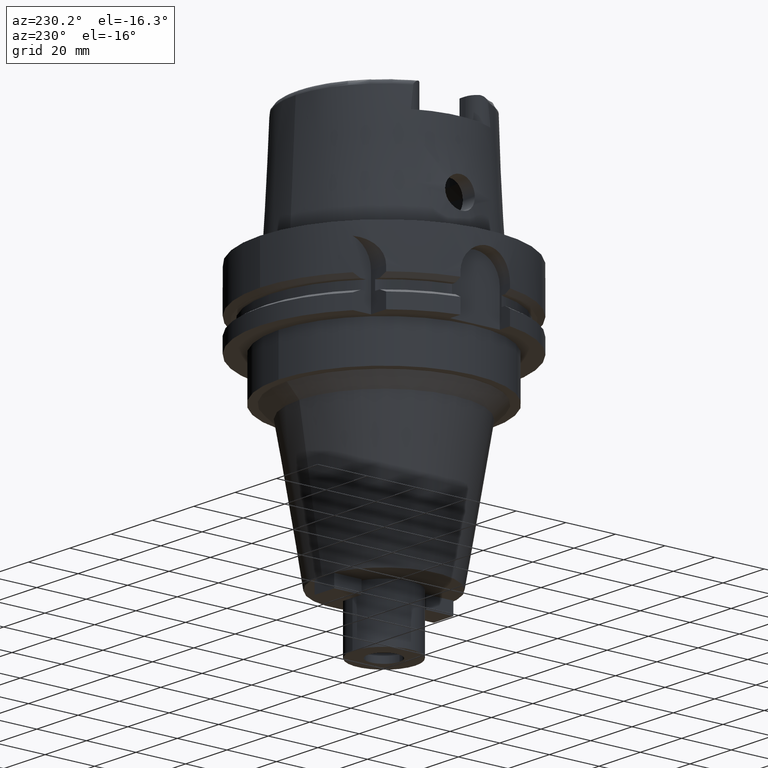
[diagram: clean part render]
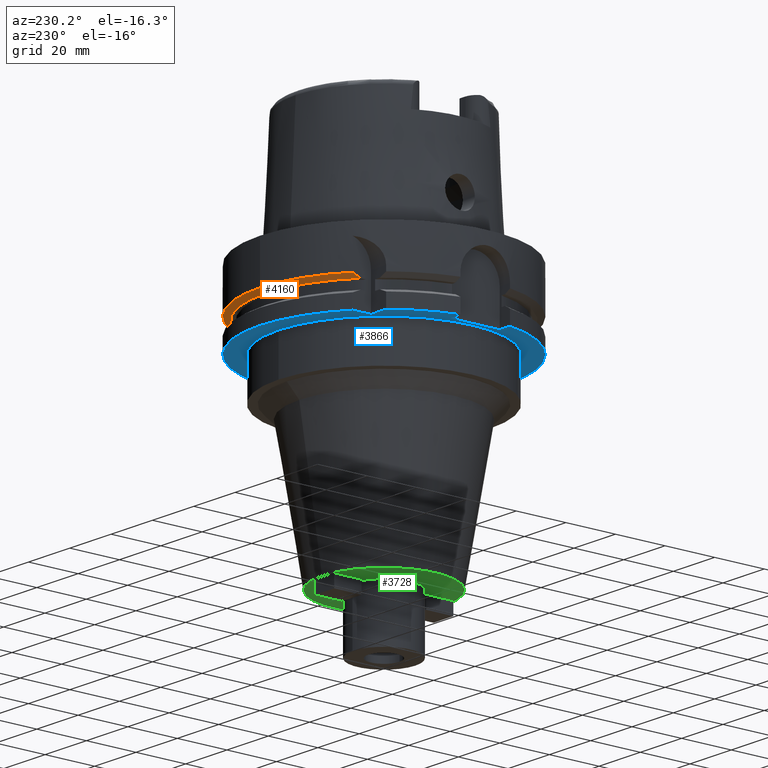
[diagram: same view with three faces highlighted in distinct colors, each labeled with its STEP entity id]
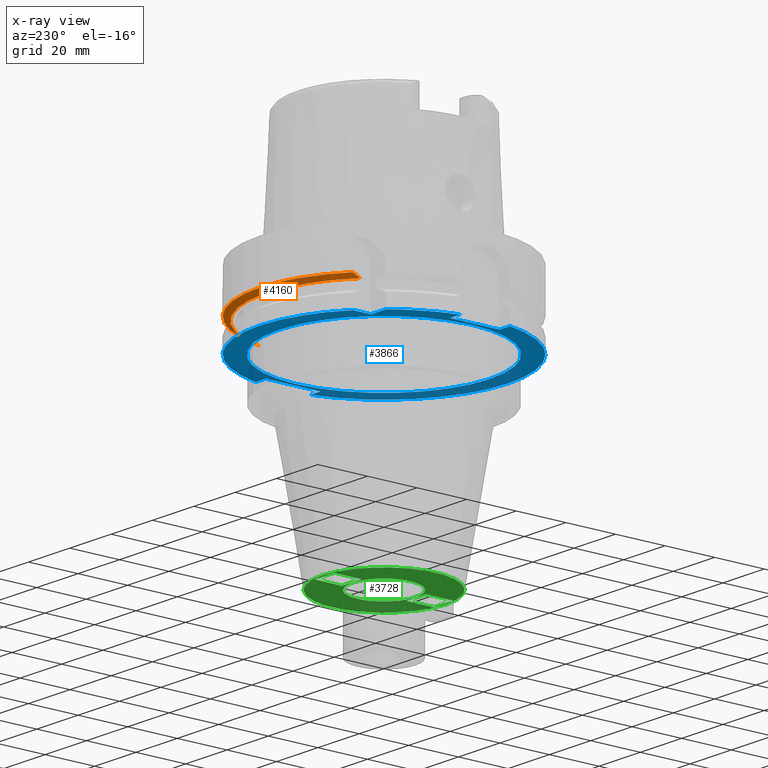
[diagram: x-ray of the same camera — body ghosted, the three highlighted faces saturated]
A machine part, auxiliary view with three faces highlighted in distinct colors.
The next image is the same camera in x-ray (body ghosted, the three faces saturated) — at least one of them is partly hidden behind the body in this view.
Their STEP definitions:

[orange] entity #4160 — the highlighted conical surface has half-angle 60 deg.
#1458=CARTESIAN_POINT('',(-3.150000097280E1,3.571639618473E1,-1.8125E1));
#1459=CARTESIAN_POINT('',(-3.150000097280E1,3.606333863821E1,
-1.797477179943E1));
#1460=CARTESIAN_POINT('',(-3.150000002064E1,3.675646915241E1,
-1.767266204693E1));
#1461=CARTESIAN_POINT('',(-3.149999846856E1,3.779429574908E1,
-1.721518165954E1));
#1462=CARTESIAN_POINT('',(-3.150000355959E1,3.848477495946E1,
-1.690706900025E1));
#1463=CARTESIAN_POINT('',(-3.150000355959E1,3.882975374305E1,
-1.675239179145E1));
#1727=CARTESIAN_POINT('',(4.633477721644E1,1.1E1,-1.8125E1));
#1728=CARTESIAN_POINT('',(4.660605711265E1,1.1E1,-1.797261191789E1));
#1729=CARTESIAN_POINT('',(4.714851446811E1,1.1E1,-1.766774350267E1));
#1730=CARTESIAN_POINT('',(4.796191616323E1,1.1E1,-1.721020456770E1));
#1731=CARTESIAN_POINT('',(4.850399904748E1,1.1E1,-1.690503024962E1));
#1732=CARTESIAN_POINT('',(4.877499359303E1,1.1E1,-1.675240473581E1));
#1737=CARTESIAN_POINT('',(0.E0,0.E0,-1.675240473581E1));
#1738=DIRECTION('',(0.E0,0.E0,1.E0));
#1739=DIRECTION('',(9.754998718606E-1,2.2E-1,0.E0));
#1740=AXIS2_PLACEMENT_3D('',#1737,#1738,#1739);
#1745=CARTESIAN_POINT('',(0.E0,0.E0,-1.675240473581E1));
#1746=DIRECTION('',(0.E0,0.E0,1.E0));
#1747=DIRECTION('',(0.E0,1.E0,0.E0));
#1748=AXIS2_PLACEMENT_3D('',#1745,#1746,#1747);
#1776=CARTESIAN_POINT('',(0.E0,0.E0,-1.8125E1));
#1777=DIRECTION('',(0.E0,0.E0,1.E0));
#1778=DIRECTION('',(9.729578356533E-1,2.309827916554E-1,0.E0));
#1779=AXIS2_PLACEMENT_3D('',#1776,#1777,#1778);
#1784=CARTESIAN_POINT('',(0.E0,0.E0,-1.8125E1));
#1785=DIRECTION('',(0.E0,0.E0,1.E0));
#1786=DIRECTION('',(0.E0,1.E0,0.E0));
#1787=AXIS2_PLACEMENT_3D('',#1784,#1785,#1786);
#2682=CARTESIAN_POINT('',(-3.150000097280E1,3.571639618473E1,-1.8125E1));
#2683=VERTEX_POINT('',#2682);
#2684=VERTEX_POINT('',#1463);
#2762=CARTESIAN_POINT('',(4.633477721644E1,1.1E1,-1.8125E1));
#2763=VERTEX_POINT('',#2762);
#2764=CARTESIAN_POINT('',(1.065814103640E-14,4.762259526419E1,-1.8125E1));
#2765=VERTEX_POINT('',#2764);
#2772=VERTEX_POINT('',#1732);
#2773=CARTESIAN_POINT('',(0.E0,5.E1,-1.675240473581E1));
#2774=VERTEX_POINT('',#2773);
#4144=CARTESIAN_POINT('',(0.E0,0.E0,-1.743870236790E1));
#4145=DIRECTION('',(0.E0,0.E0,1.E0));
#4146=DIRECTION('',(0.E0,1.E0,0.E0));
#4147=AXIS2_PLACEMENT_3D('',#4144,#4145,#4146);
#4148=CONICAL_SURFACE('',#4147,4.881129763209E1,6.E1);
#4149=ORIENTED_EDGE('',*,*,#3883,.F.);
#4151=ORIENTED_EDGE('',*,*,#4150,.F.);
#4153=ORIENTED_EDGE('',*,*,#4152,.F.);
#4154=ORIENTED_EDGE('',*,*,#3923,.T.);
#4156=ORIENTED_EDGE('',*,*,#4155,.T.);
#4157=ORIENTED_EDGE('',*,*,#4123,.T.);
#4158=EDGE_LOOP('',(#4149,#4151,#4153,#4154,#4156,#4157));
#4159=FACE_OUTER_BOUND('',#4158,.F.);
#1464=B_SPLINE_CURVE_WITH_KNOTS('',3,(#1458,#1459,#1460,#1461,#1462,#1463),
.UNSPECIFIED.,.F.,.F.,(4,1,1,4),(0.E0,3.333333333333E-1,6.666666666667E-1,1.E0),
.UNSPECIFIED.);
#1733=B_SPLINE_CURVE_WITH_KNOTS('',3,(#1727,#1728,#1729,#1730,#1731,#1732),
.UNSPECIFIED.,.F.,.F.,(4,1,1,4),(0.E0,3.333333333333E-1,6.666666666667E-1,1.E0),
.UNSPECIFIED.);
#1741=CIRCLE('',#1740,5.E1);
#1749=CIRCLE('',#1748,5.E1);
#1780=CIRCLE('',#1779,4.762259526419E1);
#1788=CIRCLE('',#1787,4.762259526419E1);
#3883=EDGE_CURVE('',#2683,#2684,#1464,.T.);
#3923=EDGE_CURVE('',#2763,#2772,#1733,.T.);
#4123=EDGE_CURVE('',#2774,#2684,#1749,.T.);
#4150=EDGE_CURVE('',#2765,#2683,#1788,.T.);
#4152=EDGE_CURVE('',#2763,#2765,#1780,.T.);
#4155=EDGE_CURVE('',#2772,#2774,#1741,.T.);
#4160=ADVANCED_FACE('',(#4159),#4148,.T.);

[blue] entity #3866 — the highlighted planar face has unit normal (0, 0, 1).
#1367=DIRECTION('',(-1.E0,-4.798503851106E-14,0.E0));
#1368=VECTOR('',#1367,7.329756630709E0);
#1369=CARTESIAN_POINT('',(-3.15E1,3.15E1,-2.9E1));
#1370=LINE('',#1369,#1368);
#1374=CARTESIAN_POINT('',(0.E0,0.E0,-2.9E1));
#1375=DIRECTION('',(0.E0,0.E0,1.E0));
#1376=DIRECTION('',(-7.765951326142E-1,6.3E-1,0.E0));
#1377=AXIS2_PLACEMENT_3D('',#1374,#1375,#1376);
#1382=DIRECTION('',(-1.E0,-4.627973610177E-14,0.E0));
#1383=VECTOR('',#1382,4.989794855662E0);
#1384=CARTESIAN_POINT('',(-4.4E1,-1.E1,-2.9E1));
#1385=LINE('',#1384,#1383);
#1389=CARTESIAN_POINT('',(0.E0,0.E0,-2.9E1));
#1390=DIRECTION('',(0.E0,0.E0,1.E0));
#1391=DIRECTION('',(-9.797958971133E-1,-2.E-1,0.E0));
#1392=AXIS2_PLACEMENT_3D('',#1389,#1390,#1391);
#1397=CARTESIAN_POINT('',(0.E0,0.E0,-2.9E1));
#1398=DIRECTION('',(0.E0,0.E0,1.E0));
#1399=DIRECTION('',(0.E0,-1.E0,0.E0));
#1400=AXIS2_PLACEMENT_3D('',#1397,#1398,#1399);
#1405=DIRECTION('',(1.E0,-1.785659532940E-14,0.E0));
#1406=VECTOR('',#1405,4.774993593029E0);
#1407=CARTESIAN_POINT('',(4.4E1,1.1E1,-2.9E1));
#1408=LINE('',#1407,#1406);
#1412=CARTESIAN_POINT('',(0.E0,0.E0,-2.9E1));
#1413=DIRECTION('',(0.E0,0.E0,1.E0));
#1414=DIRECTION('',(9.754998718606E-1,2.2E-1,0.E0));
#1415=AXIS2_PLACEMENT_3D('',#1412,#1413,#1414);
#1420=CARTESIAN_POINT('',(0.E0,0.E0,-2.9E1));
#1421=DIRECTION('',(0.E0,0.E0,1.E0));
#1422=DIRECTION('',(0.E0,1.E0,0.E0));
#1423=AXIS2_PLACEMENT_3D('',#1420,#1421,#1422);
#1428=CARTESIAN_POINT('',(0.E0,0.E0,-2.9E1));
#1429=DIRECTION('',(0.E0,0.E0,-1.E0));
#1430=DIRECTION('',(0.E0,-1.E0,0.E0));
#1431=AXIS2_PLACEMENT_3D('',#1428,#1429,#1430);
#1436=CARTESIAN_POINT('',(0.E0,0.E0,-2.9E1));
#1437=DIRECTION('',(0.E0,0.E0,-1.E0));
#1438=DIRECTION('',(0.E0,1.E0,0.E0));
#1439=AXIS2_PLACEMENT_3D('',#1436,#1437,#1438);
#1444=DIRECTION('',(4.798503851106E-14,1.E0,0.E0));
#1445=VECTOR('',#1444,7.329756630709E0);
#1446=CARTESIAN_POINT('',(-3.15E1,3.15E1,-2.9E1));
#1447=LINE('',#1446,#1445);
#1497=DIRECTION('',(0.E0,-1.E0,0.E0));
#1498=VECTOR('',#1497,2.2E1);
#1499=CARTESIAN_POINT('',(4.4E1,1.1E1,-2.9E1));
#1500=LINE('',#1499,#1498);
#1541=DIRECTION('',(1.E0,1.711257052401E-14,0.E0));
#1542=VECTOR('',#1541,4.774993593029E0);
#1543=CARTESIAN_POINT('',(4.4E1,-1.1E1,-2.9E1));
#1544=LINE('',#1543,#1542);
#1583=DIRECTION('',(0.E0,1.E0,0.E0));
#1584=VECTOR('',#1583,2.E1);
#1585=CARTESIAN_POINT('',(-4.4E1,-1.E1,-2.9E1));
#1586=LINE('',#1585,#1584);
#1606=DIRECTION('',(-1.E0,4.627973610177E-14,0.E0));
#1607=VECTOR('',#1606,4.989794855662E0);
#1608=CARTESIAN_POINT('',(-4.4E1,1.E1,-2.9E1));
#1609=LINE('',#1608,#1607);
#2645=CARTESIAN_POINT('',(0.E0,4.25E1,-2.9E1));
#2646=VERTEX_POINT('',#2645);
#2647=CARTESIAN_POINT('',(0.E0,-4.25E1,-2.9E1));
#2648=VERTEX_POINT('',#2647);
#2649=CARTESIAN_POINT('',(-3.15E1,3.15E1,-2.9E1));
#2650=CARTESIAN_POINT('',(-3.15E1,3.882975663071E1,-2.9E1));
#2651=VERTEX_POINT('',#2649);
#2652=VERTEX_POINT('',#2650);
#2653=CARTESIAN_POINT('',(-3.882975663071E1,3.15E1,-2.9E1));
#2654=VERTEX_POINT('',#2653);
#2655=CARTESIAN_POINT('',(-4.898979485566E1,1.E1,-2.9E1));
#2656=VERTEX_POINT('',#2655);
#2657=CARTESIAN_POINT('',(-4.4E1,1.E1,-2.9E1));
#2658=VERTEX_POINT('',#2657);
#2659=CARTESIAN_POINT('',(-4.4E1,-1.E1,-2.9E1));
#2660=VERTEX_POINT('',#2659);
#2661=CARTESIAN_POINT('',(-4.898979485566E1,-1.E1,-2.9E1));
#2662=VERTEX_POINT('',#2661);
#2663=CARTESIAN_POINT('',(-6.821749291192E-14,-5.E1,-2.9E1));
#2664=CARTESIAN_POINT('',(4.877499359303E1,-1.1E1,-2.9E1));
#2665=VERTEX_POINT('',#2663);
#2666=VERTEX_POINT('',#2664);
#2667=CARTESIAN_POINT('',(4.4E1,-1.1E1,-2.9E1));
#2668=VERTEX_POINT('',#2667);
#2669=CARTESIAN_POINT('',(4.4E1,1.1E1,-2.9E1));
#2670=VERTEX_POINT('',#2669);
#2671=CARTESIAN_POINT('',(4.877499359303E1,1.1E1,-2.9E1));
#2672=VERTEX_POINT('',#2671);
#2673=CARTESIAN_POINT('',(-6.019535474874E-14,5.E1,-2.9E1));
#2674=VERTEX_POINT('',#2673);
#3829=CARTESIAN_POINT('',(0.E0,0.E0,-2.9E1));
#3830=DIRECTION('',(0.E0,0.E0,1.E0));
#3831=DIRECTION('',(0.E0,1.E0,0.E0));
#3832=AXIS2_PLACEMENT_3D('',#3829,#3830,#3831);
#3833=PLANE('',#3832);
#3835=ORIENTED_EDGE('',*,*,#3834,.F.);
#3837=ORIENTED_EDGE('',*,*,#3836,.T.);
#3839=ORIENTED_EDGE('',*,*,#3838,.T.);
#3841=ORIENTED_EDGE('',*,*,#3840,.F.);
#3843=ORIENTED_EDGE('',*,*,#3842,.F.);
#3845=ORIENTED_EDGE('',*,*,#3844,.T.);
#3847=ORIENTED_EDGE('',*,*,#3846,.T.);
#3849=ORIENTED_EDGE('',*,*,#3848,.T.);
#3851=ORIENTED_EDGE('',*,*,#3850,.F.);
#3853=ORIENTED_EDGE('',*,*,#3852,.F.);
#3855=ORIENTED_EDGE('',*,*,#3854,.T.);
#3857=ORIENTED_EDGE('',*,*,#3856,.T.);
#3859=ORIENTED_EDGE('',*,*,#3858,.T.);
#3860=EDGE_LOOP('',(#3835,#3837,#3839,#3841,#3843,#3845,#3847,#3849,#3851,#3853,
#3855,#3857,#3859));
#3861=FACE_OUTER_BOUND('',#3860,.F.);
#3862=ORIENTED_EDGE('',*,*,#3822,.T.);
#3863=ORIENTED_EDGE('',*,*,#3811,.T.);
#3864=EDGE_LOOP('',(#3862,#3863));
#3865=FACE_BOUND('',#3864,.F.);
#1378=CIRCLE('',#1377,5.E1);
#1393=CIRCLE('',#1392,5.E1);
#1401=CIRCLE('',#1400,5.E1);
#1416=CIRCLE('',#1415,5.E1);
#1424=CIRCLE('',#1423,5.E1);
#1432=CIRCLE('',#1431,4.25E1);
#1440=CIRCLE('',#1439,4.25E1);
#3811=EDGE_CURVE('',#2646,#2648,#1440,.T.);
#3822=EDGE_CURVE('',#2648,#2646,#1432,.T.);
#3834=EDGE_CURVE('',#2651,#2652,#1447,.T.);
#3836=EDGE_CURVE('',#2651,#2654,#1370,.T.);
#3838=EDGE_CURVE('',#2654,#2656,#1378,.T.);
#3840=EDGE_CURVE('',#2658,#2656,#1609,.T.);
#3842=EDGE_CURVE('',#2660,#2658,#1586,.T.);
#3844=EDGE_CURVE('',#2660,#2662,#1385,.T.);
#3846=EDGE_CURVE('',#2662,#2665,#1393,.T.);
#3848=EDGE_CURVE('',#2665,#2666,#1401,.T.);
#3850=EDGE_CURVE('',#2668,#2666,#1544,.T.);
#3852=EDGE_CURVE('',#2670,#2668,#1500,.T.);
#3854=EDGE_CURVE('',#2670,#2672,#1408,.T.);
#3856=EDGE_CURVE('',#2672,#2674,#1416,.T.);
#3858=EDGE_CURVE('',#2674,#2652,#1424,.T.);
#3866=ADVANCED_FACE('',(#3861,#3865),#3833,.F.);

[green] entity #3728 — the highlighted planar face has unit normal (0, 0, 1).
#1217=CARTESIAN_POINT('',(0.E0,0.E0,-1.05E2));
#1218=DIRECTION('',(0.E0,0.E0,1.E0));
#1219=DIRECTION('',(0.E0,-1.E0,0.E0));
#1220=AXIS2_PLACEMENT_3D('',#1217,#1218,#1219);
#1225=CARTESIAN_POINT('',(0.E0,0.E0,-1.05E2));
#1226=DIRECTION('',(0.E0,0.E0,1.E0));
#1227=DIRECTION('',(0.E0,1.E0,0.E0));
#1228=AXIS2_PLACEMENT_3D('',#1225,#1226,#1227);
#1233=CARTESIAN_POINT('',(0.E0,0.E0,-1.05E2));
#1234=DIRECTION('',(0.E0,0.E0,-1.E0));
#1235=DIRECTION('',(0.E0,-1.E0,0.E0));
#1236=AXIS2_PLACEMENT_3D('',#1233,#1234,#1235);
#1241=CARTESIAN_POINT('',(0.E0,0.E0,-1.05E2));
#1242=DIRECTION('',(0.E0,0.E0,-1.E0));
#1243=DIRECTION('',(0.E0,1.E0,0.E0));
#1244=AXIS2_PLACEMENT_3D('',#1241,#1242,#1243);
#1249=DIRECTION('',(0.E0,1.E0,0.E0));
#1250=VECTOR('',#1249,1.1E1);
#1251=CARTESIAN_POINT('',(-4.75E0,1.3E1,-1.05E2));
#1252=LINE('',#1251,#1250);
#1256=DIRECTION('',(-1.E0,0.E0,0.E0));
#1257=VECTOR('',#1256,9.5E0);
#1258=CARTESIAN_POINT('',(4.75E0,1.3E1,-1.05E2));
#1259=LINE('',#1258,#1257);
#1263=DIRECTION('',(0.E0,-1.E0,0.E0));
#1264=VECTOR('',#1263,1.1E1);
#1265=CARTESIAN_POINT('',(4.75E0,-1.3E1,-1.05E2));
#1266=LINE('',#1265,#1264);
#1270=DIRECTION('',(1.E0,0.E0,0.E0));
#1271=VECTOR('',#1270,9.5E0);
#1272=CARTESIAN_POINT('',(-4.75E0,-1.3E1,-1.05E2));
#1273=LINE('',#1272,#1271);
#2317=DIRECTION('',(0.E0,1.E0,0.E0));
#2318=VECTOR('',#2317,1.1E1);
#2319=CARTESIAN_POINT('',(4.75E0,1.3E1,-1.05E2));
#2320=LINE('',#2319,#2318);
#2345=DIRECTION('',(-1.E0,0.E0,0.E0));
#2346=VECTOR('',#2345,9.5E0);
#2347=CARTESIAN_POINT('',(4.75E0,2.4E1,-1.05E2));
#2348=LINE('',#2347,#2346);
#2387=DIRECTION('',(0.E0,-1.E0,0.E0));
#2388=VECTOR('',#2387,1.1E1);
#2389=CARTESIAN_POINT('',(-4.75E0,-1.3E1,-1.05E2));
#2390=LINE('',#2389,#2388);
#2415=DIRECTION('',(1.E0,0.E0,0.E0));
#2416=VECTOR('',#2415,9.5E0);
#2417=CARTESIAN_POINT('',(-4.75E0,-2.4E1,-1.05E2));
#2418=LINE('',#2417,#2416);
#2609=CARTESIAN_POINT('',(0.E0,1.27E1,-1.05E2));
#2610=VERTEX_POINT('',#2609);
#2611=CARTESIAN_POINT('',(0.E0,-1.27E1,-1.05E2));
#2612=VERTEX_POINT('',#2611);
#2613=CARTESIAN_POINT('',(0.E0,-2.5E1,-1.05E2));
#2614=CARTESIAN_POINT('',(0.E0,2.5E1,-1.05E2));
#2615=VERTEX_POINT('',#2613);
#2616=VERTEX_POINT('',#2614);
#2617=CARTESIAN_POINT('',(-4.75E0,1.3E1,-1.05E2));
#2618=CARTESIAN_POINT('',(-4.75E0,2.4E1,-1.05E2));
#2619=VERTEX_POINT('',#2617);
#2620=VERTEX_POINT('',#2618);
#2621=CARTESIAN_POINT('',(4.75E0,2.4E1,-1.05E2));
#2622=VERTEX_POINT('',#2621);
#2623=CARTESIAN_POINT('',(4.75E0,1.3E1,-1.05E2));
#2624=VERTEX_POINT('',#2623);
#2625=CARTESIAN_POINT('',(4.75E0,-1.3E1,-1.05E2));
#2626=CARTESIAN_POINT('',(4.75E0,-2.4E1,-1.05E2));
#2627=VERTEX_POINT('',#2625);
#2628=VERTEX_POINT('',#2626);
#2629=CARTESIAN_POINT('',(-4.75E0,-2.4E1,-1.05E2));
#2630=VERTEX_POINT('',#2629);
#2631=CARTESIAN_POINT('',(-4.75E0,-1.3E1,-1.05E2));
#2632=VERTEX_POINT('',#2631);
#3693=CARTESIAN_POINT('',(0.E0,0.E0,-1.05E2));
#3694=DIRECTION('',(0.E0,0.E0,1.E0));
#3695=DIRECTION('',(0.E0,1.E0,0.E0));
#3696=AXIS2_PLACEMENT_3D('',#3693,#3694,#3695);
#3697=PLANE('',#3696);
#3699=ORIENTED_EDGE('',*,*,#3698,.T.);
#3701=ORIENTED_EDGE('',*,*,#3700,.T.);
#3702=EDGE_LOOP('',(#3699,#3701));
#3703=FACE_OUTER_BOUND('',#3702,.F.);
#3704=ORIENTED_EDGE('',*,*,#3686,.T.);
#3705=ORIENTED_EDGE('',*,*,#3675,.T.);
#3706=EDGE_LOOP('',(#3704,#3705));
#3707=FACE_BOUND('',#3706,.F.);
#3709=ORIENTED_EDGE('',*,*,#3708,.T.);
#3711=ORIENTED_EDGE('',*,*,#3710,.F.);
#3713=ORIENTED_EDGE('',*,*,#3712,.F.);
#3715=ORIENTED_EDGE('',*,*,#3714,.T.);
#3716=EDGE_LOOP('',(#3709,#3711,#3713,#3715));
#3717=FACE_BOUND('',#3716,.F.);
#3719=ORIENTED_EDGE('',*,*,#3718,.T.);
#3721=ORIENTED_EDGE('',*,*,#3720,.F.);
#3723=ORIENTED_EDGE('',*,*,#3722,.F.);
#3725=ORIENTED_EDGE('',*,*,#3724,.T.);
#3726=EDGE_LOOP('',(#3719,#3721,#3723,#3725));
#3727=FACE_BOUND('',#3726,.F.);
#1221=CIRCLE('',#1220,2.5E1);
#1229=CIRCLE('',#1228,2.5E1);
#1237=CIRCLE('',#1236,1.27E1);
#1245=CIRCLE('',#1244,1.27E1);
#3675=EDGE_CURVE('',#2610,#2612,#1245,.T.);
#3686=EDGE_CURVE('',#2612,#2610,#1237,.T.);
#3698=EDGE_CURVE('',#2615,#2616,#1221,.T.);
#3700=EDGE_CURVE('',#2616,#2615,#1229,.T.);
#3708=EDGE_CURVE('',#2619,#2620,#1252,.T.);
#3710=EDGE_CURVE('',#2622,#2620,#2348,.T.);
#3712=EDGE_CURVE('',#2624,#2622,#2320,.T.);
#3714=EDGE_CURVE('',#2624,#2619,#1259,.T.);
#3718=EDGE_CURVE('',#2627,#2628,#1266,.T.);
#3720=EDGE_CURVE('',#2630,#2628,#2418,.T.);
#3722=EDGE_CURVE('',#2632,#2630,#2390,.T.);
#3724=EDGE_CURVE('',#2632,#2627,#1273,.T.);
#3728=ADVANCED_FACE('',(#3703,#3707,#3717,#3727),#3697,.F.);